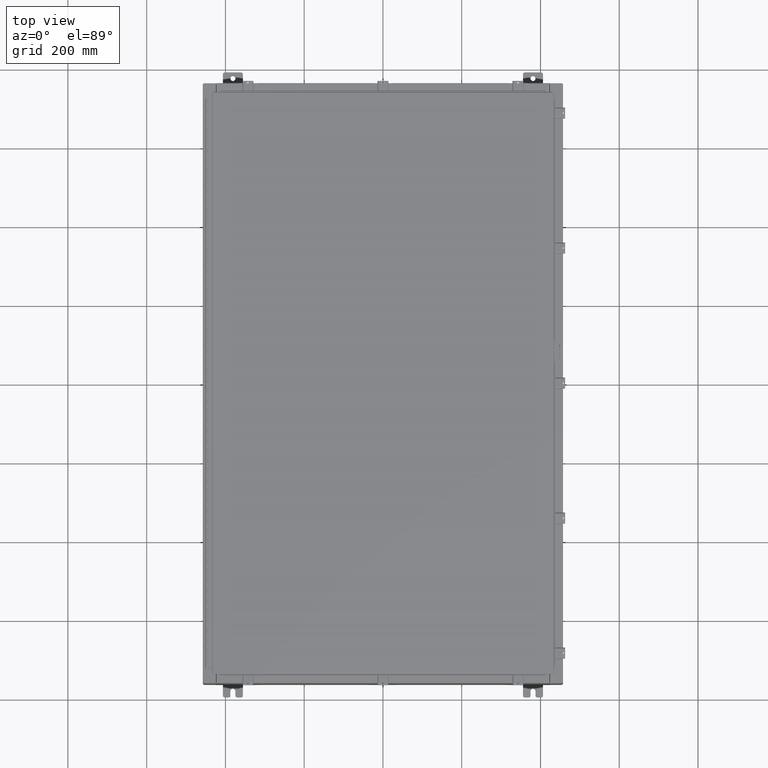
[diagram: clean part render]
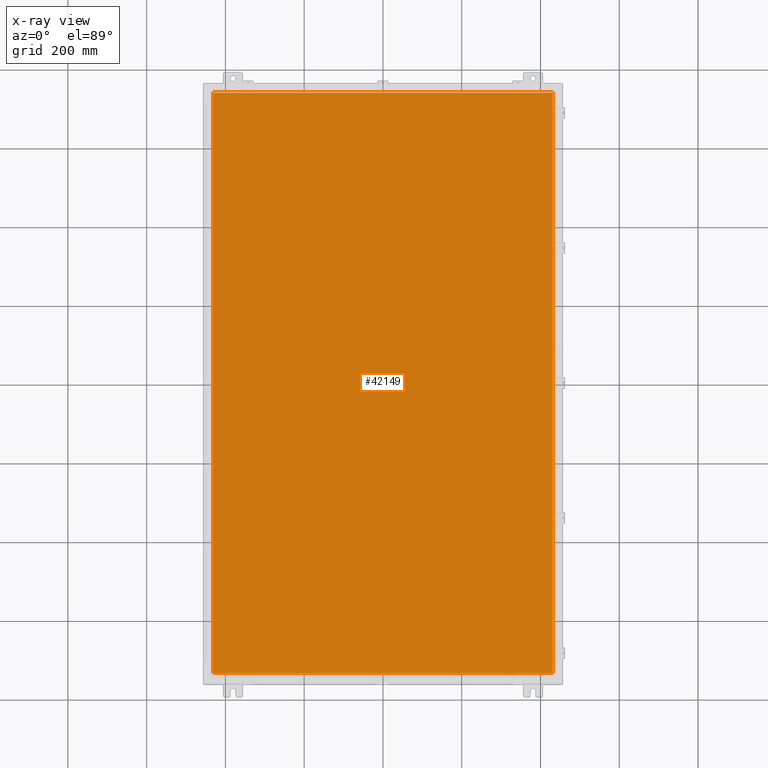
[diagram: x-ray — body ghosted, one internal face saturated and labeled with its STEP entity id]
A machine part, top view, then the same camera in x-ray: the body is ghosted and one INTERNAL B-rep face — a face not visible from any outside direction — is saturated and labeled: STEP entity #42149.
In plain terms, the highlighted planar face has unit normal (0, 0, -1).
Its self-contained STEP definition (entity closure, byte-faithful):
#1765 = DIRECTION ( 'NONE',  ( -1.000000000000000000, -0.0000000000000000000, -0.0000000000000000000 ) ) ;
#3605 = LINE ( 'NONE', #16433, #40879 ) ;
#5003 = VECTOR ( 'NONE', #25464, 39.37007874015748100 ) ;
#6266 = ORIENTED_EDGE ( 'NONE', *, *, #55898, .F. ) ;
#7109 = EDGE_CURVE ( 'NONE', #11918, #48861, #53684, .T. ) ;
#11918 = VERTEX_POINT ( 'NONE', #50824 ) ;
#13771 = EDGE_LOOP ( 'NONE', ( #37211, #43815, #6266, #14602 ) ) ;
#14602 = ORIENTED_EDGE ( 'NONE', *, *, #23815, .F. ) ;
#15357 = CARTESIAN_POINT ( 'NONE',  ( 0.0000000000000000000, 0.0000000000000000000, -0.07470000000000000300 ) ) ;
#16433 = CARTESIAN_POINT ( 'NONE',  ( 16.99030000000000500, 29.00630000000000300, -0.07469999999999804600 ) ) ;
#18334 = VERTEX_POINT ( 'NONE', #43598 ) ;
#19036 = CARTESIAN_POINT ( 'NONE',  ( 16.99030000000000500, -29.00630000000000000, -0.07470000000000000300 ) ) ;
#19085 = EDGE_CURVE ( 'NONE', #48861, #18334, #33951, .T. ) ;
#19575 = DIRECTION ( 'NONE',  ( 0.0000000000000000000, -1.000000000000000000, 0.0000000000000000000 ) ) ;
#23166 = VECTOR ( 'NONE', #19575, 39.37007874015748100 ) ;
#23815 = EDGE_CURVE ( 'NONE', #18334, #42082, #3605, .T. ) ;
#24589 = CARTESIAN_POINT ( 'NONE',  ( -16.99029999999999400, 29.00630000000000000, -0.07470000000000000300 ) ) ;
#25464 = DIRECTION ( 'NONE',  ( 0.0000000000000000000, 1.000000000000000000, 0.0000000000000000000 ) ) ;
#27550 = AXIS2_PLACEMENT_3D ( 'NONE', #15357, #59159, #30043 ) ;
#30043 = DIRECTION ( 'NONE',  ( -1.000000000000000000, 0.0000000000000000000, -0.0000000000000000000 ) ) ;
#32054 = FACE_OUTER_BOUND ( 'NONE', #13771, .T. ) ;
#33951 = LINE ( 'NONE', #59222, #5003 ) ;
#37211 = ORIENTED_EDGE ( 'NONE', *, *, #19085, .F. ) ;
#39122 = CARTESIAN_POINT ( 'NONE',  ( -16.99029999999999400, 29.00630000000000000, -0.07469999999999582500 ) ) ;
#40692 = VECTOR ( 'NONE', #56354, 39.37007874015748100 ) ;
#40879 = VECTOR ( 'NONE', #1765, 39.37007874015748100 ) ;
#42082 = VERTEX_POINT ( 'NONE', #24589 ) ;
#42149 = ADVANCED_FACE ( 'NONE', ( #32054 ), #54292, .T. ) ;
#43598 = CARTESIAN_POINT ( 'NONE',  ( 16.99030000000000500, 29.00630000000000000, -0.07470000000000000300 ) ) ;
#43815 = ORIENTED_EDGE ( 'NONE', *, *, #7109, .F. ) ;
#48861 = VERTEX_POINT ( 'NONE', #19036 ) ;
#50824 = CARTESIAN_POINT ( 'NONE',  ( -16.99029999999999800, -29.00630000000000000, -0.07470000000000000300 ) ) ;
#53684 = LINE ( 'NONE', #56588, #40692 ) ;
#54292 = PLANE ( 'NONE',  #27550 ) ;
#55898 = EDGE_CURVE ( 'NONE', #42082, #11918, #61896, .T. ) ;
#56354 = DIRECTION ( 'NONE',  ( 1.000000000000000000, -0.0000000000000000000, -0.0000000000000000000 ) ) ;
#56588 = CARTESIAN_POINT ( 'NONE',  ( -16.99029999999999800, -29.00630000000000300, -0.07469999999999804600 ) ) ;
#59159 = DIRECTION ( 'NONE',  ( 0.0000000000000000000, 0.0000000000000000000, -1.000000000000000000 ) ) ;
#59222 = CARTESIAN_POINT ( 'NONE',  ( 16.99030000000000500, -29.00630000000000000, -0.07470000000000019700 ) ) ;
#61896 = LINE ( 'NONE', #39122, #23166 ) ;